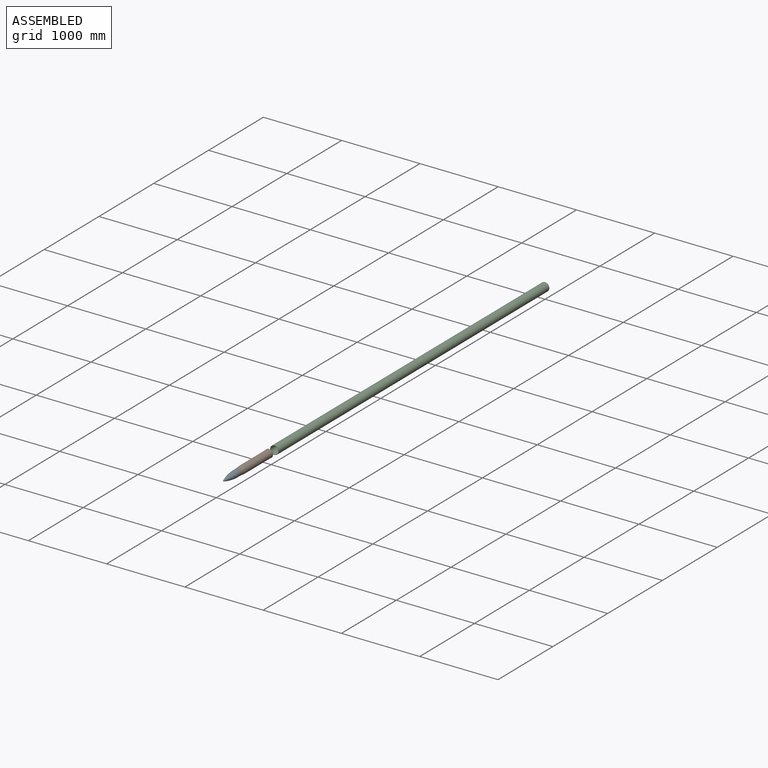
[diagram: assembled view]
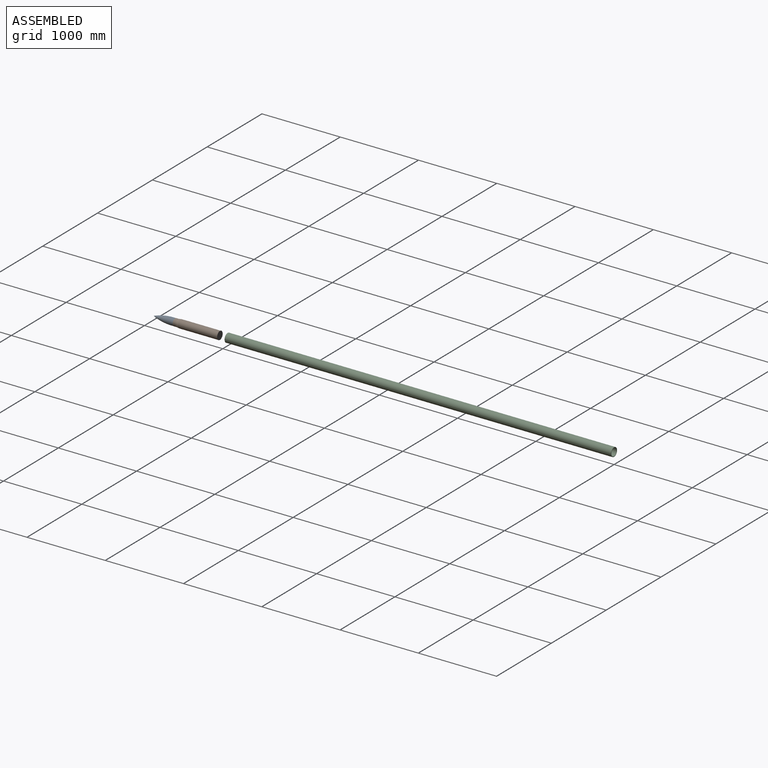
[diagram: assembled view, second angle]
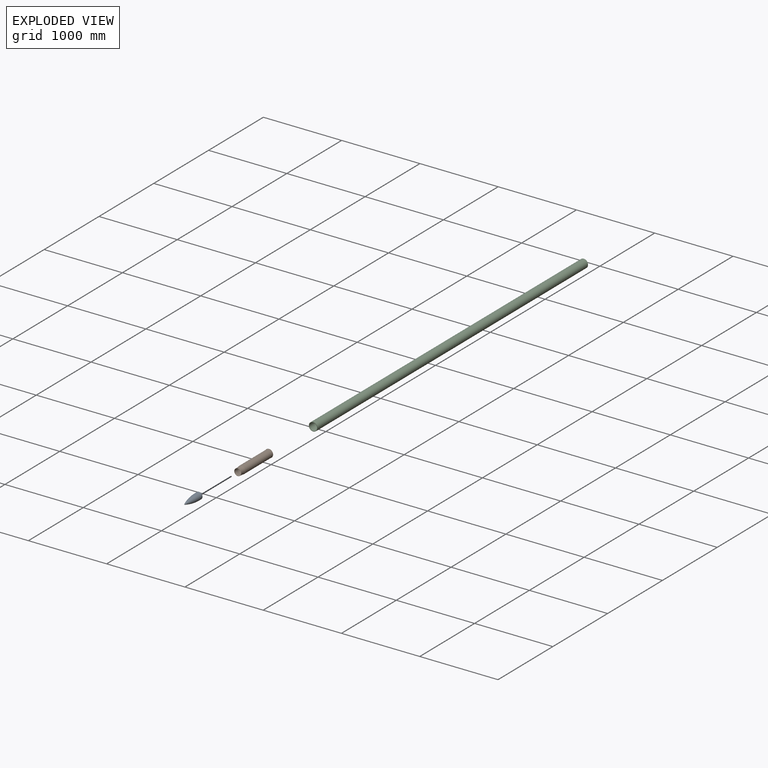
[diagram: exploded view]
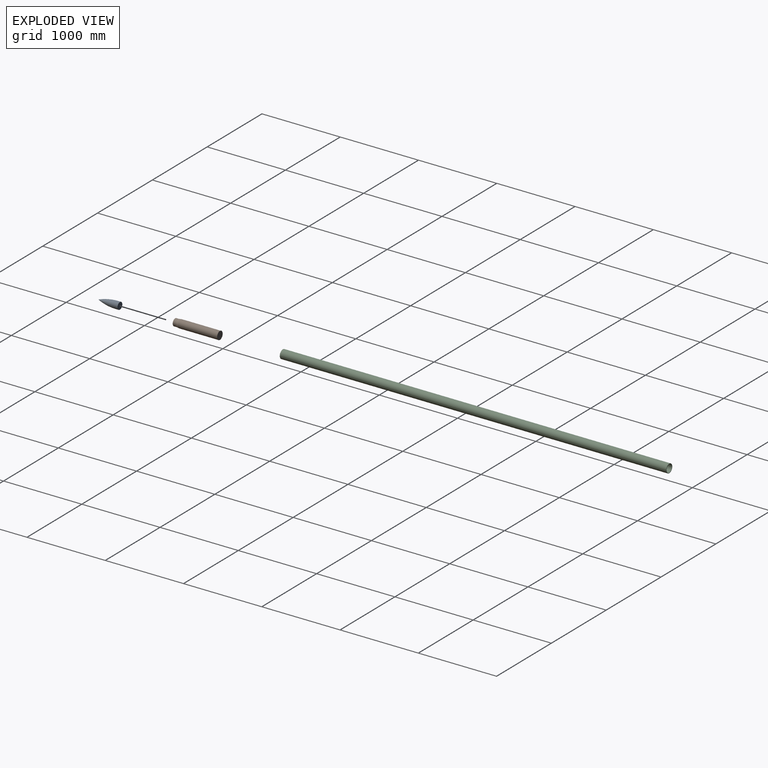
[diagram: exploded view, second angle]
ASSEMBLY  parts=3 mates=2
PART A: 4 faces, bbox 88x88x270.8 mm
  f0: plane 88x88mm, normal (0,0,-1), area 6082.1mm2, adj f1
  f1: cylinder r=44mm len=88mm, axis (0,0,1), area 9676.1mm2, adj f0,f2
  f2: revolved ~235.82x88mm, area 45297.1mm2, adj f1,f3
  f3: plane 4x4mm, normal (0,0,1), area 12.6mm2, adj f2
PART B: 13 faces, bbox 103x103x572 mm
  f0: plane 101x101mm, normal (0,0,1), area 8011.8mm2, adj f11
  f1: plane 103x103mm, normal (0,0,-1), area 8332.3mm2, adj f2
  f2: cylinder r=51.5mm len=103mm, axis (0,0,-1), area 970.8mm2, adj f1,f3
  f3: plane 103x103mm, normal (0,0,1), area 478.3mm2, adj f2,f4
  f4: cylinder r=50mm len=499.07mm, axis (0,0,-1), area 156787.8mm2, adj f3,f5
  f5: cone r=50mm half-angle=8.1deg, axis (0,0,-1), area 10551.8mm2, adj f4,f6
  f6: cylinder r=45mm len=90mm, axis (0,0,-1), area 9734.6mm2, adj f5,f12
  f7: cylinder r=44mm len=88mm, axis (0,0,-1), area 9537.9mm2, adj f8,f12
  f8: cone r=49mm half-angle=8.1deg, axis (0,0,-1), area 10329.7mm2, adj f7,f9
  f9: cylinder r=49mm len=500mm, axis (0,0,-1), area 153938mm2, adj f8,f10
  f10: plane 101x101mm, normal (0,0,-1), area 468.9mm2, adj f9,f11
  f11: cylinder r=50.5mm len=101mm, axis (0,0,-1), area 317.3mm2, adj f0,f10
  f12: torus R=44.5mm, axis (0,0,-1), area 439.2mm2, adj f6,f7
PART C: 4 faces, bbox 110x4938x110 mm
  f0: cylinder r=50mm len=4938mm, axis (0,1,0), area 1551318.5mm2, adj f2,f3
  f1: cylinder r=55mm len=4938mm, axis (0,1,0), area 1706450.3mm2, adj f2,f3
  f2: plane 110x110mm, normal (0,-1,0), area 1649.3mm2, adj f0,f1
  f3: plane 110x110mm, normal (0,1,0), area 1649.3mm2, adj f0,f1
PLACE A rot(axis=(1,0,0),90deg) t=(0,-5607.5,0)mm
PLACE B rot(axis=(1,0,0),90deg) t=(0,-5037,0)mm
PLACE C at identity fixed
MATE slider C.f0 <-> B.f2  axis (0,-1,0) through (0,-4938,0)mm
MATE fastened B.f2 <-> A.f1  axis (0,1,0) through (0,-5607.5,0)mm
